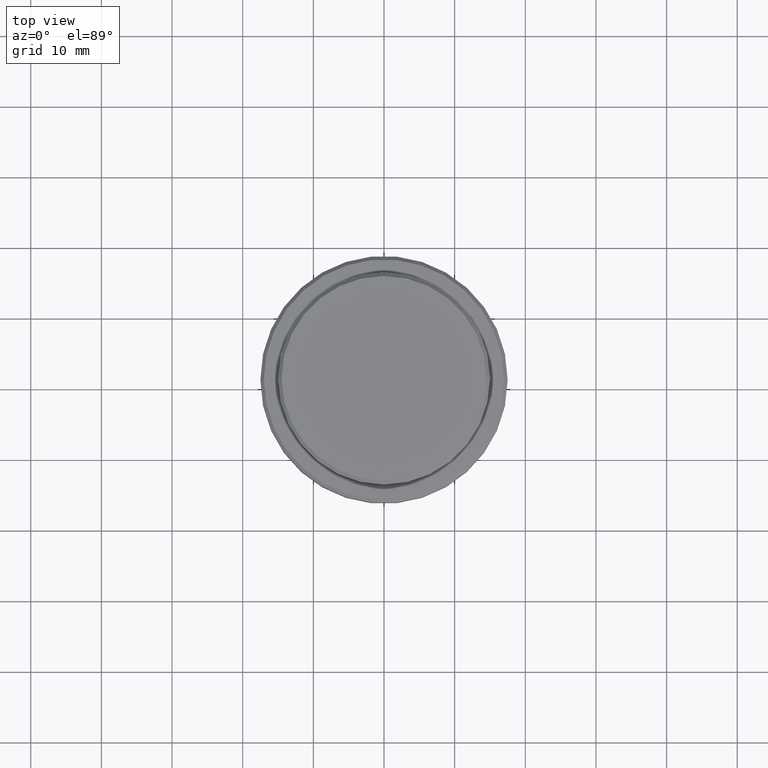
[diagram: clean part render]
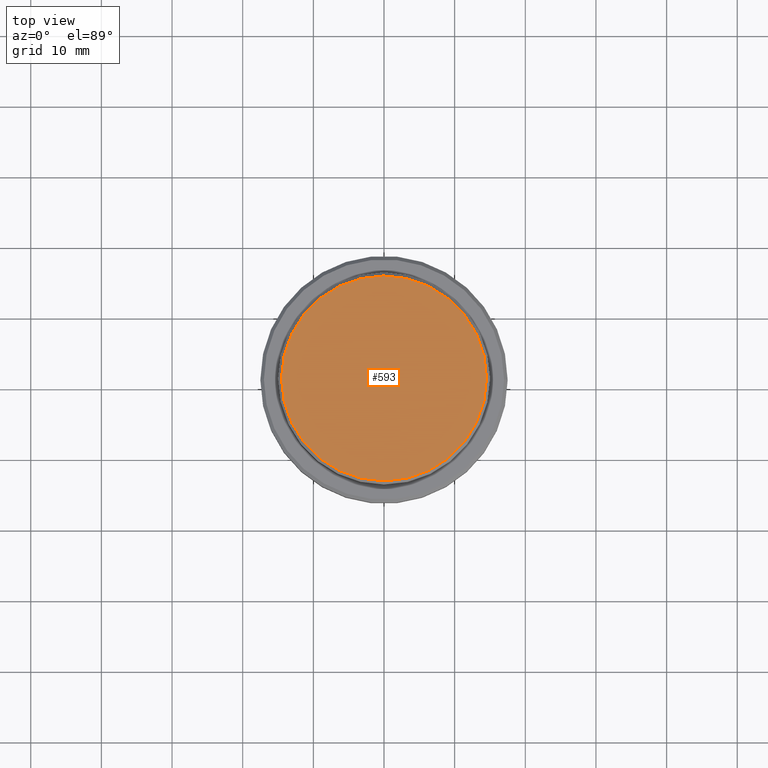
[diagram: same view with one face highlighted and labeled with its STEP entity id]
A machine part, top view. The second image highlights one B-rep face of the part: STEP entity #593.
In plain terms, the highlighted planar face has unit normal (0, -0, 1).
Its self-contained STEP definition (entity closure, byte-faithful):
#34 = DIRECTION ( 'NONE',  ( 1.000000000000000000, 0.000000000000000000, 0.000000000000000000 ) ) ;
#154 = CIRCLE ( 'NONE', #1057, 14.50000000000001066 ) ;
#326 = VERTEX_POINT ( 'NONE', #1160 ) ;
#372 = PLANE ( 'NONE',  #485 ) ;
#421 = EDGE_LOOP ( 'NONE', ( #988, #928 ) ) ;
#485 = AXIS2_PLACEMENT_3D ( 'NONE', #1325, #1243, #1018 ) ;
#557 = CIRCLE ( 'NONE', #627, 14.50000000000001066 ) ;
#593 = ADVANCED_FACE ( 'NONE', ( #1340 ), #372, .T. ) ;
#627 = AXIS2_PLACEMENT_3D ( 'NONE', #953, #1382, #730 ) ;
#730 = DIRECTION ( 'NONE',  ( 1.000000000000000000, 0.000000000000000000, 0.000000000000000000 ) ) ;
#928 = ORIENTED_EDGE ( 'NONE', *, *, #1087, .T. ) ;
#943 = VERTEX_POINT ( 'NONE', #1106 ) ;
#953 = CARTESIAN_POINT ( 'NONE',  ( 0.000000000000000000, 0.000000000000000000, 0.000000000000000000 ) ) ;
#988 = ORIENTED_EDGE ( 'NONE', *, *, #1193, .T. ) ;
#1017 = DIRECTION ( 'NONE',  ( -0.000000000000000000, -0.000000000000000000, 1.000000000000000000 ) ) ;
#1018 = DIRECTION ( 'NONE',  ( 1.000000000000000000, 0.000000000000000000, 0.000000000000000000 ) ) ;
#1057 = AXIS2_PLACEMENT_3D ( 'NONE', #1344, #1017, #34 ) ;
#1087 = EDGE_CURVE ( 'NONE', #943, #326, #154, .T. ) ;
#1106 = CARTESIAN_POINT ( 'NONE',  ( 14.50000000000001066, 1.806354028742346591E-15, 0.000000000000000000 ) ) ;
#1160 = CARTESIAN_POINT ( 'NONE',  ( -14.50000000000001066, 0.000000000000000000, 0.000000000000000000 ) ) ;
#1193 = EDGE_CURVE ( 'NONE', #326, #943, #557, .T. ) ;
#1243 = DIRECTION ( 'NONE',  ( 0.000000000000000000, -0.000000000000000000, 1.000000000000000000 ) ) ;
#1325 = CARTESIAN_POINT ( 'NONE',  ( 0.000000000000000000, 0.000000000000000000, 0.000000000000000000 ) ) ;
#1340 = FACE_OUTER_BOUND ( 'NONE', #421, .T. ) ;
#1344 = CARTESIAN_POINT ( 'NONE',  ( 0.000000000000000000, 0.000000000000000000, 0.000000000000000000 ) ) ;
#1382 = DIRECTION ( 'NONE',  ( -0.000000000000000000, -0.000000000000000000, 1.000000000000000000 ) ) ;